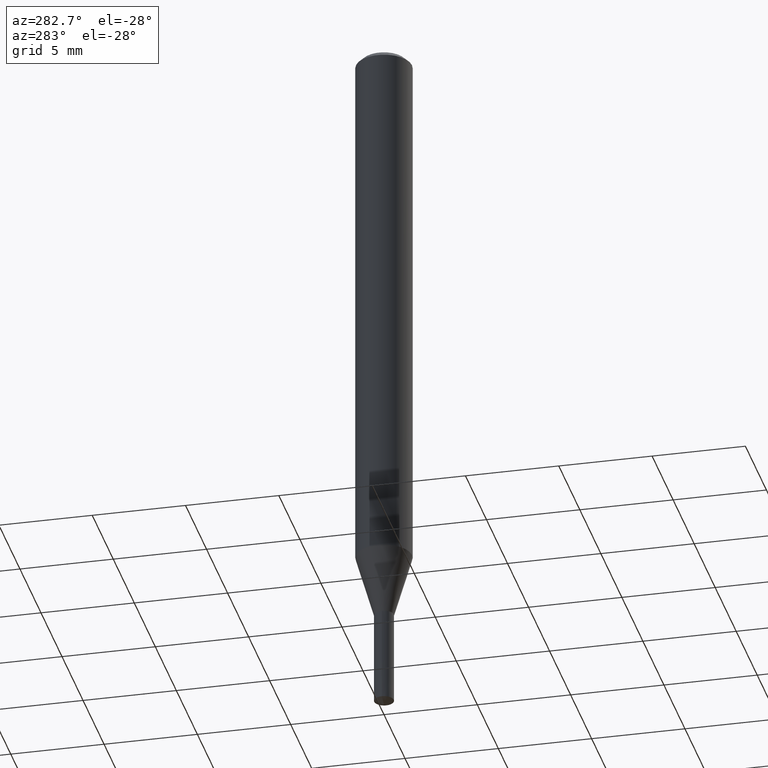
[diagram: clean part render]
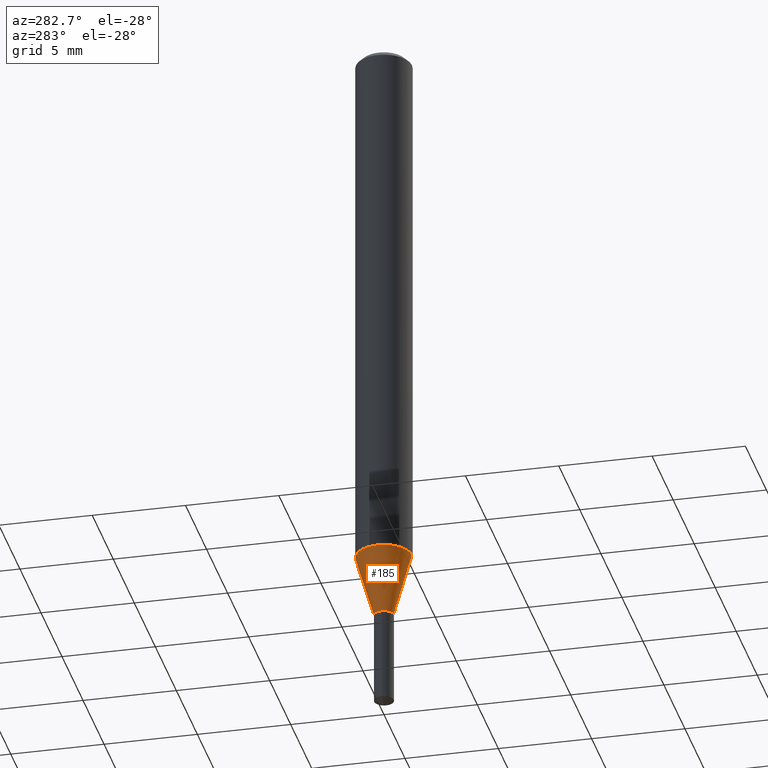
[diagram: same view with one face highlighted and labeled with its STEP entity id]
A machine part, auxiliary view. The second image highlights one B-rep face of the part: STEP entity #185.
In plain terms, the highlighted conical surface has half-angle 16.005 deg.
Its self-contained STEP definition (entity closure, byte-faithful):
#111=EDGE_CURVE('',#171,#139,#249,.T.);
#121=EDGE_CURVE('',#133,#201,#262,.T.);
#133=VERTEX_POINT('',#275);
#139=VERTEX_POINT('',#282);
#171=VERTEX_POINT('',#318);
#175=EDGE_CURVE('',#133,#171,#322,.T.);
#185=ADVANCED_FACE('',(#332),#333,.T.);
#201=VERTEX_POINT('',#351);
#205=EDGE_CURVE('',#139,#201,#355,.T.);
#249=CIRCLE('',#399,1.5);
#262=CIRCLE('',#415,0.525);
#275=CARTESIAN_POINT('',(6.42918335756748E-017,-0.525,-32.6991339745962));
#282=CARTESIAN_POINT('',(0.0,1.5,-29.3));
#318=CARTESIAN_POINT('',(1.83690953073357E-016,-1.5,-29.3));
#322=LINE('',#487,#488);
#332=FACE_OUTER_BOUND('',#504,.T.);
#333=CONICAL_SURFACE('',#505,1.0125,0.279338040987867);
#351=CARTESIAN_POINT('',(0.0,0.525,-32.6991339745962));
#355=LINE('',#532,#533);
#399=AXIS2_PLACEMENT_3D('',#564,#565,#566);
#415=AXIS2_PLACEMENT_3D('',#589,#590,#591);
#487=CARTESIAN_POINT('',(1.23991393324516E-016,-1.0125,-30.9995669872981));
#488=VECTOR('',#658,1.0);
#504=EDGE_LOOP('',(#668,#669,#670,#671));
#505=AXIS2_PLACEMENT_3D('',#672,#673,#674);
#532=CARTESIAN_POINT('',(-1.23991393324516E-016,1.0125,-30.9995669872981));
#533=VECTOR('',#702,1.0);
#564=CARTESIAN_POINT('',(0.0,0.0,-29.3));
#565=DIRECTION('',(0.0,0.0,-1.0));
#566=DIRECTION('',(0.0,1.0,0.0));
#589=CARTESIAN_POINT('',(0.0,0.0,-32.6991339745962));
#590=DIRECTION('',(0.0,0.0,-1.0));
#591=DIRECTION('',(0.0,1.0,0.0));
#658=DIRECTION('',(3.37647739832205E-017,-0.275719408753924,0.961238163847226));
#668=ORIENTED_EDGE('',*,*,#205,.T.);
#669=ORIENTED_EDGE('',*,*,#121,.F.);
#670=ORIENTED_EDGE('',*,*,#175,.T.);
#671=ORIENTED_EDGE('',*,*,#111,.T.);
#672=CARTESIAN_POINT('',(0.0,0.0,-30.9995669872981));
#673=DIRECTION('',(-0.0,-0.0,1.0));
#674=DIRECTION('',(0.0,1.0,0.0));
#702=DIRECTION('',(3.37647739832205E-017,-0.275719408753924,-0.961238163847226));